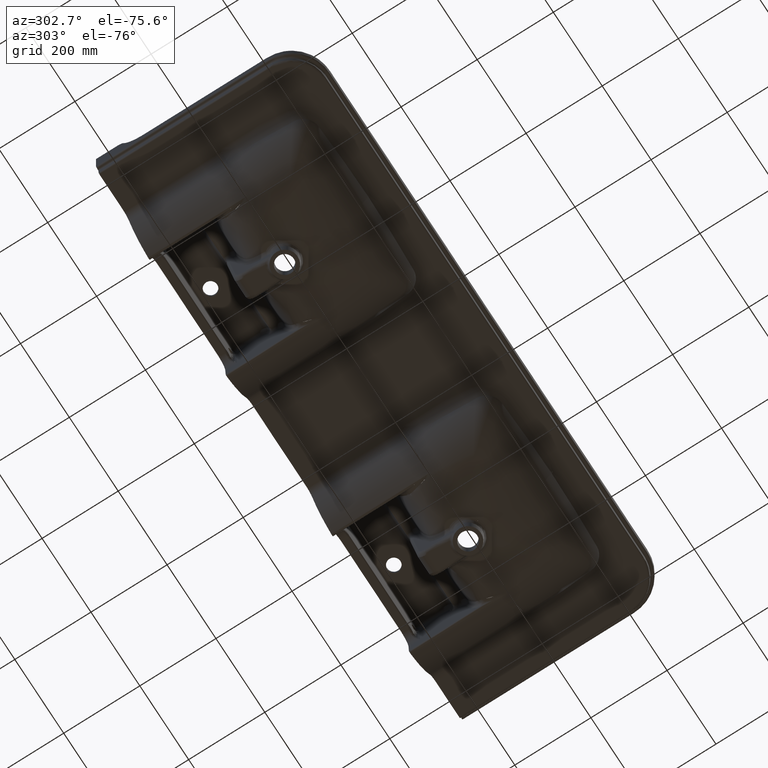
[diagram: clean part render]
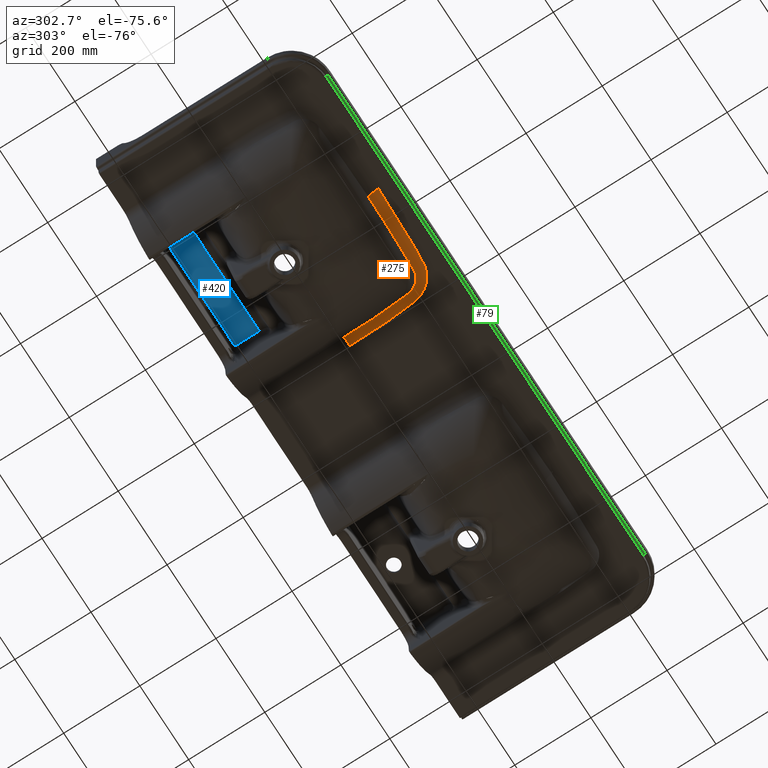
[diagram: same view with three faces highlighted in distinct colors, each labeled with its STEP entity id]
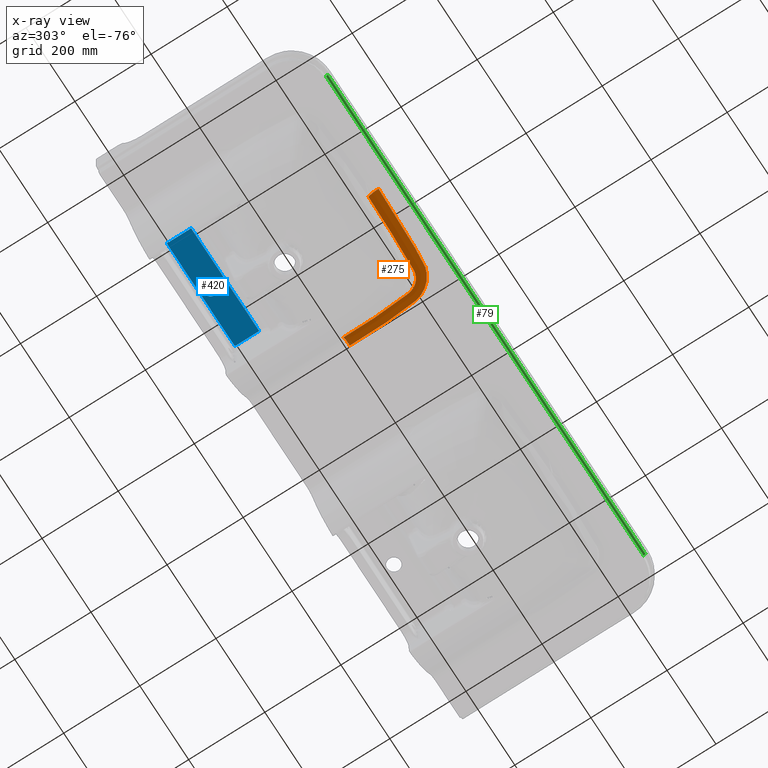
[diagram: x-ray of the same camera — body ghosted, the three highlighted faces saturated]
A machine part, auxiliary view with three faces highlighted in distinct colors.
The next image is the same camera in x-ray (body ghosted, the three faces saturated) — at least one of them is partly hidden behind the body in this view.
Their STEP definitions:

[orange] entity #275 — the highlighted face is a freeform B-spline surface patch.
#275=ADVANCED_FACE($,(#920),#8227,.T.);
#920=FACE_OUTER_BOUND($,#1569,.T.);
#1569=EDGE_LOOP($,(#3029,#3030,#3031,#3032,#3033,#3034,#3035));
#3029=ORIENTED_EDGE($,*,*,#5884,.F.);
#3030=ORIENTED_EDGE($,*,*,#5885,.F.);
#3031=ORIENTED_EDGE($,*,*,#5886,.T.);
#3032=ORIENTED_EDGE($,*,*,#5887,.T.);
#3033=ORIENTED_EDGE($,*,*,#5881,.F.);
#3034=ORIENTED_EDGE($,*,*,#5882,.F.);
#3035=ORIENTED_EDGE($,*,*,#5883,.F.);
#5881=EDGE_CURVE($,#7319,#7318,#9435,.T.);
#5882=EDGE_CURVE($,#7320,#7319,#8918,.T.);
#5883=EDGE_CURVE($,#7321,#7320,#9436,.T.);
#5884=EDGE_CURVE($,#7322,#7321,#9437,.T.);
#5885=EDGE_CURVE($,#7323,#7322,#9438,.T.);
#5886=EDGE_CURVE($,#7323,#7324,#9439,.T.);
#5887=EDGE_CURVE($,#7324,#7318,#9440,.T.);
#7318=VERTEX_POINT($,#248286);
#7319=VERTEX_POINT($,#248287);
#7320=VERTEX_POINT($,#248288);
#7321=VERTEX_POINT($,#248289);
#7322=VERTEX_POINT($,#248290);
#7323=VERTEX_POINT($,#248291);
#7324=VERTEX_POINT($,#248292);
#8227=(
BOUNDED_SURFACE()
B_SPLINE_SURFACE(2,3,((#137853,#137854,#137855,#137856,#137857,#137858,#137859,
#137860,#137861,#137862,#137863,#137864,#137865,#137866,#137867,#137868,
#137869,#137870,#137871,#137872,#137873,#137874,#137875,#137876,#137877,
#137878,#137879,#137880,#137881,#137882,#137883,#137884,#137885,#137886,
#137887,#137888,#137889,#137890,#137891,#137892,#137893,#137894,#137895,
#137896,#137897,#137898,#137899,#137900,#137901,#137902,#137903,#137904,
#137905,#137906,#137907,#137908,#137909,#137910,#137911,#137912,#137913,
#137914,#137915,#137916,#137917,#137918,#137919,#137920,#137921,#137922,
#137923,#137924,#137925,#137926,#137927,#137928,#137929,#137930,#137931,
#137932,#137933,#137934,#137935,#137936,#137937,#137938,#137939,#137940,
#137941,#137942,#137943,#137944,#137945,#137946,#137947,#137948,#137949,
#137950,#137951,#137952,#137953,#137954,#137955,#137956,#137957,#137958,
#137959,#137960,#137961,#137962,#137963,#137964,#137965,#137966,#137967,
#137968,#137969,#137970,#137971,#137972,#137973,#137974,#137975,#137976,
#137977,#137978,#137979,#137980,#137981,#137982,#137983,#137984,#137985,
#137986,#137987,#137988,#137989,#137990,#137991,#137992,#137993,#137994,
#137995,#137996,#137997,#137998,#137999,#138000,#138001,#138002,#138003,
#138004,#138005,#138006,#138007,#138008,#138009,#138010,#138011,#138012,
#138013,#138014,#138015,#138016,#138017,#138018,#138019,#138020,#138021,
#138022,#138023,#138024),(#138025,#138026,#138027,#138028,#138029,#138030,
#138031,#138032,#138033,#138034,#138035,#138036,#138037,#138038,#138039,
#138040,#138041,#138042,#138043,#138044,#138045,#138046,#138047,#138048,
#138049,#138050,#138051,#138052,#138053,#138054,#138055,#138056,#138057,
#138058,#138059,#138060,#138061,#138062,#138063,#138064,#138065,#138066,
#138067,#138068,#138069,#138070,#138071,#138072,#138073,#138074,#138075,
#138076,#138077,#138078,#138079,#138080,#138081,#138082,#138083,#138084,
#138085,#138086,#138087,#138088,#138089,#138090,#138091,#138092,#138093,
#138094,#138095,#138096,#138097,#138098,#138099,#138100,#138101,#138102,
#138103,#138104,#138105,#138106,#138107,#138108,#138109,#138110,#138111,
#138112,#138113,#138114,#138115,#138116,#138117,#138118,#138119,#138120,
#138121,#138122,#138123,#138124,#138125,#138126,#138127,#138128,#138129,
#138130,#138131,#138132,#138133,#138134,#138135,#138136,#138137,#138138,
#138139,#138140,#138141,#138142,#138143,#138144,#138145,#138146,#138147,
#138148,#138149,#138150,#138151,#138152,#138153,#138154,#138155,#138156,
#138157,#138158,#138159,#138160,#138161,#138162,#138163,#138164,#138165,
#138166,#138167,#138168,#138169,#138170,#138171,#138172,#138173,#138174,
#138175,#138176,#138177,#138178,#138179,#138180,#138181,#138182,#138183,
#138184,#138185,#138186,#138187,#138188,#138189,#138190,#138191,#138192,
#138193,#138194,#138195,#138196),(#138197,#138198,#138199,#138200,#138201,
#138202,#138203,#138204,#138205,#138206,#138207,#138208,#138209,#138210,
#138211,#138212,#138213,#138214,#138215,#138216,#138217,#138218,#138219,
#138220,#138221,#138222,#138223,#138224,#138225,#138226,#138227,#138228,
#138229,#138230,#138231,#138232,#138233,#138234,#138235,#138236,#138237,
#138238,#138239,#138240,#138241,#138242,#138243,#138244,#138245,#138246,
#138247,#138248,#138249,#138250,#138251,#138252,#138253,#138254,#138255,
#138256,#138257,#138258,#138259,#138260,#138261,#138262,#138263,#138264,
#138265,#138266,#138267,#138268,#138269,#138270,#138271,#138272,#138273,
#138274,#138275,#138276,#138277,#138278,#138279,#138280,#138281,#138282,
#138283,#138284,#138285,#138286,#138287,#138288,#138289,#138290,#138291,
#138292,#138293,#138294,#138295,#138296,#138297,#138298,#138299,#138300,
#138301,#138302,#138303,#138304,#138305,#138306,#138307,#138308,#138309,
#138310,#138311,#138312,#138313,#138314,#138315,#138316,#138317,#138318,
#138319,#138320,#138321,#138322,#138323,#138324,#138325,#138326,#138327,
#138328,#138329,#138330,#138331,#138332,#138333,#138334,#138335,#138336,
#138337,#138338,#138339,#138340,#138341,#138342,#138343,#138344,#138345,
#138346,#138347,#138348,#138349,#138350,#138351,#138352,#138353,#138354,
#138355,#138356,#138357,#138358,#138359,#138360,#138361,#138362,#138363,
#138364,#138365,#138366,#138367,#138368)),.UNSPECIFIED.,.F.,.F.,.F.)
B_SPLINE_SURFACE_WITH_KNOTS((3,3),(4,2,2,2,2,2,2,2,2,2,2,2,2,2,2,2,2,2,2,
2,2,2,2,2,2,2,2,2,2,2,2,2,2,2,2,2,2,2,2,2,2,2,2,2,2,2,2,2,2,2,2,2,2,2,2,
2,2,2,2,2,2,2,2,2,2,2,2,2,2,2,2,2,2,2,2,2,2,2,2,2,2,2,2,2,2,4),(0.,1.),(0.113112291,
0.127729659089774,0.142347027523934,0.171581764392253,0.200816501260573,
0.215433869694733,0.230051238128893,0.259285974997212,0.273903343431372,
0.277557685539912,0.281212027648452,0.288520711865532,0.303138080299691,
0.303594873063259,0.303823269445043,0.303937467635935,0.303951742409796,
0.303966017183658,0.303969585877123,0.303973154570588,0.303980291957519,
0.30399456673138,0.304051665826826,0.304965251353961,0.306792422408231,0.310446764516771,
0.314101106625311,0.315928277679581,0.317755448733851,0.321409790842391,
0.323236961896661,0.324150547423796,0.325064132950931,0.328718475059471,
0.330545646113741,0.332372817168011,0.339681501385091,0.341508672439361,
0.343335843493631,0.346990185602171,0.348817356656441,0.349730942183576,
0.350644527710711,0.354298869819251,0.356126040873521,0.357953211927791,
0.361607554036331,0.36526189614487,0.36708906719914,0.36891623825341,0.37257058036195,
0.37439775141622,0.37622492247049,0.37805209352476,0.37987926457903,0.3817064356333,
0.38353360668757,0.39084229090465,0.39449663301319,0.39815097512173,0.40545965933881,
0.406373244865945,0.406830037629512,0.407058434011296,0.407172632202188,
0.407229731297634,0.407258280845357,0.407265418232288,0.407268986925753,
0.407272555619218,0.40728683039308,0.40911400144735,0.41276834355589,0.42007702777297,
0.434694396207129,0.463929133075449,0.493163869943769,0.507781238377928,
0.515089922595008,0.522398606812088,0.537015975246248,0.551633343680408,
0.566250712114567,0.573559396331647,0.577213738440187,0.578078284599652),
.UNSPECIFIED.)
GEOMETRIC_REPRESENTATION_ITEM()
RATIONAL_B_SPLINE_SURFACE(((1.,1.,1.,1.,1.,1.,1.,1.,1.,1.,1.,1.,1.,1.,1.,
1.,1.,1.,1.,1.,1.,1.,1.,1.,1.,1.,1.,1.,1.,1.,1.,1.,1.,1.,1.,1.,1.,1.,1.,
1.,1.,1.,1.,1.,1.,1.,1.,1.,1.,1.,1.,1.,1.,1.,1.,1.,1.,1.,1.,1.,1.,1.,1.,
1.,1.,1.,1.,1.,1.,1.,1.,1.,1.,1.,1.,1.,1.,1.,1.,1.,1.,1.,1.,1.,1.,1.,1.,
1.,1.,1.,1.,1.,1.,1.,1.,1.,1.,1.,1.,1.,1.,1.,1.,1.,1.,1.,1.,1.,1.,1.,1.,
1.,1.,1.,1.,1.,1.,1.,1.,1.,1.,1.,1.,1.,1.,1.,1.,1.,1.,1.,1.,1.,1.,1.,1.,
1.,1.,1.,1.,1.,1.,1.,1.,1.,1.,1.,1.,1.,1.,1.,1.,1.,1.,1.,1.,1.,1.,1.,1.,
1.,1.,1.,1.,1.,1.,1.,1.,1.,1.,1.,1.,1.),(0.857438929811203,0.857438929812373,
0.857463763529032,0.85756577833455,0.857642969061803,0.857956973654814,0.858276714983811,
0.859152749749832,0.859708787745644,0.860725822684233,0.861095351585493,
0.861895058478538,0.862325247804178,0.863705814917389,0.864746566890884,
0.866480209283033,0.867086645969073,0.867879063760453,0.868041446814136,
0.868357360044424,0.868517179080222,0.869002163770204,0.869332858059088,
0.870346542241388,0.871051144834735,0.871805903223466,0.871828801319567,
0.871863188334703,0.87187465731839,0.871891870752202,0.871897610223262,0.871904068994509,
0.871904786661689,0.871906222047865,0.871906505721978,0.871907945459265,
0.871909236637133,0.871911385709347,0.871912460199073,0.871915683529068,
0.871917832230184,0.871924277777006,0.871928574066147,0.871950051802689,
0.871967222122666,0.872258916035657,0.87253041700964,0.873335993148249,0.873861144731058,
0.875402197802647,0.876383745916408,0.878260914085848,0.879156531062547,
0.880438658340336,0.880855806233801,0.881670036621338,0.882067340359129,
0.883227228520192,0.883958303743553,0.88499459224514,0.88532995548012,0.885818158268095,
0.885978418066932,0.886294022127716,0.886449482016551,0.887213029176084,
0.88777907257622,0.888564814089526,0.888816330699907,0.889297533841163,0.889527292062117,
0.890623579114697,0.891333751293355,0.892028430878358,0.892157643746476,
0.892396730933284,0.892506702080743,0.892806723132706,0.892967018815005,
0.893148686680573,0.893199432443362,0.893260804133901,0.893278790377181,
0.893309762986543,0.893322764244134,0.893375447460495,0.893378234809171,
0.893324424349863,0.893296808592213,0.893222200702912,0.893175230342714,
0.893005596720148,0.892854266991417,0.892475246144095,0.892247555700195,
0.89184748600975,0.891704359627584,0.891398183812081,0.891235047139323,0.890715697760276,
0.890329820335173,0.889689316978788,0.88946543223278,0.888998168114758,0.888754622361124,
0.888247349825368,0.887983472984811,0.887437248079825,0.88715468044922,0.886570397225501,
0.886268523017541,0.885646126089522,0.885325696766987,0.883677037893099,
0.882210226150678,0.879769910124632,0.878915966971912,0.877123523028473,
0.8761869588445,0.873249611578892,0.871122116847899,0.868507004249026,0.868213337799483,
0.867768082981174,0.867618851435667,0.867394018463916,0.867318901738856,
0.867205966895504,0.867168278655164,0.867111681210033,0.867092804547342,
0.867064473264062,0.867055026787978,0.867043215297338,0.867040594314984,
0.867037438130095,0.867037279148967,0.867036512357384,0.867036128964524,
0.867034212014862,0.867032678502057,0.866834861398976,0.866639346285377,
0.866055151632084,0.865668822787918,0.864519600264601,0.863766470372235,
0.861549032466876,0.860126668207991,0.856050732884523,0.853588021677519,
0.849300979114552,0.847476544737901,0.845327227143134,0.844708711931276,
0.843943212841606,0.84371510769726,0.843315754851524,0.84314441043619,0.842719840926094,
0.842556323958187,0.842492138159948,0.842591383627006,0.843079064015501,
0.843467496533482,0.844288545023973,0.844601978439052,0.845134594693668,
0.845322545494266,0.845568137141812,0.845615718566746,0.845663897577864),
(1.,1.,1.,1.,1.,1.,1.,1.,1.,1.,1.,1.,1.,1.,1.,1.,1.,1.,1.,1.,1.,1.,1.,1.,
1.,1.,1.,1.,1.,1.,1.,1.,1.,1.,1.,1.,1.,1.,1.,1.,1.,1.,1.,1.,1.,1.,1.,1.,
1.,1.,1.,1.,1.,1.,1.,1.,1.,1.,1.,1.,1.,1.,1.,1.,1.,1.,1.,1.,1.,1.,1.,1.,
1.,1.,1.,1.,1.,1.,1.,1.,1.,1.,1.,1.,1.,1.,1.,1.,1.,1.,1.,1.,1.,1.,1.,1.,
1.,1.,1.,1.,1.,1.,1.,1.,1.,1.,1.,1.,1.,1.,1.,1.,1.,1.,1.,1.,1.,1.,1.,1.,
1.,1.,1.,1.,1.,1.,1.,1.,1.,1.,1.,1.,1.,1.,1.,1.,1.,1.,1.,1.,1.,1.,1.,1.,
1.,1.,1.,1.,1.,1.,1.,1.,1.,1.,1.,1.,1.,1.,1.,1.,1.,1.,1.,1.,1.,1.,1.,1.,
1.,1.,1.,1.)))
REPRESENTATION_ITEM($)
SURFACE()
);
#8918=(
BOUNDED_CURVE()
B_SPLINE_CURVE(2,(#18452,#18453,#18454),.UNSPECIFIED.,.F.,.F.)
B_SPLINE_CURVE_WITH_KNOTS((3,3),(1.,2.08104888053683),.UNSPECIFIED.)
CURVE()
GEOMETRIC_REPRESENTATION_ITEM()
RATIONAL_B_SPLINE_CURVE((1.,0.857438929806326,1.))
REPRESENTATION_ITEM($)
);
#9435=B_SPLINE_CURVE_WITH_KNOTS($,3,(#18410,#18411,#18412,#18413,#18414,
#18415,#18416,#18417,#18418,#18419,#18420,#18421,#18422,#18423,#18424,#18425,
#18426,#18427,#18428,#18429,#18430,#18431,#18432,#18433,#18434,#18435,#18436,
#18437,#18438,#18439,#18440,#18441,#18442,#18443,#18444,#18445,#18446,#18447,
#18448,#18449,#18450,#18451),.UNSPECIFIED.,.F.,.F.,(4,2,2,2,2,2,2,2,2,2,
2,2,2,2,2,2,2,2,2,2,4),(2.08104888053683,2.33104888053661,2.45604888053664,
2.48729888053665,2.50292388053666,2.51854888053666,2.53417388053666,2.54979888053667,
2.58104888053668,2.59667388053668,2.61229888053669,2.6435488805367,2.6591738805367,
2.6747988805367,2.70604888053671,2.72167388053672,2.73729888053672,2.76854888053673,
2.83104888053675,2.95604888053679,3.08104888053683),.UNSPECIFIED.);
#9436=B_SPLINE_CURVE_WITH_KNOTS($,3,(#18455,#18456,#18457,#18458,#18459,
#18460),.UNSPECIFIED.,.F.,.F.,(4,2,4),(0.,0.500000000000359,1.),.UNSPECIFIED.);
#9437=B_SPLINE_CURVE_WITH_KNOTS($,3,(#18461,#18462,#18463,#18464,#18465,
#18466,#18467,#18468,#18469,#18470,#18471,#18472,#18473,#18474,#18475,#18476,
#18477,#18478),.UNSPECIFIED.,.F.,.F.,(4,2,2,2,2,2,2,2,4),(5.08105823697527,
5.20605823697527,5.33105823697527,5.45605823697527,5.58105823697527,5.70605823697527,
5.83105823697527,5.95605823697527,6.08105823697527),.UNSPECIFIED.);
#9438=B_SPLINE_CURVE_WITH_KNOTS($,3,(#18479,#18480,#18481,#18482,#18483,
#18484),.UNSPECIFIED.,.F.,.F.,(4,2,4),(4.08105823697527,4.58105823697527,
5.08105823697527),.UNSPECIFIED.);
#9439=B_SPLINE_CURVE_WITH_KNOTS($,3,(#18485,#18486,#18487,#18488),.UNSPECIFIED.,
.F.,.F.,(4,4),(0.0323038140107749,0.0323131704492199),.UNSPECIFIED.);
#9440=B_SPLINE_CURVE_WITH_KNOTS($,3,(#18489,#18490,#18491,#18492,#18493,
#18494,#18495,#18496,#18497,#18498,#18499,#18500,#18501,#18502),.UNSPECIFIED.,
.F.,.F.,(4,2,2,2,2,2,4),(0.0322938794926911,0.28229387949269,0.407293879492689,
0.532293879492689,0.782293879492687,0.907293879492689,1.03229387949269),
.UNSPECIFIED.);
#18410=CARTESIAN_POINT($,(-30.9148483423476,-232.142942241147,154.999999999983));
#18411=CARTESIAN_POINT($,(7.82056681657857,-232.142942240883,154.999999999963));
#18412=CARTESIAN_POINT($,(46.5444309125041,-231.1295097829,154.999999999963));
#18413=CARTESIAN_POINT($,(104.587050962414,-228.533767860927,154.999999999963));
#18414=CARTESIAN_POINT($,(123.928145600399,-227.495306177936,154.999999999963));
#18415=CARTESIAN_POINT($,(148.089944627381,-226.042261812946,154.999999999963));
#18416=CARTESIAN_POINT($,(152.921356752377,-225.743885986949,154.999999999963));
#18417=CARTESIAN_POINT($,(160.167178161371,-225.285694179952,154.999999999963));
#18418=CARTESIAN_POINT($,(162.580985284369,-225.120943041953,154.999999999963));
#18419=CARTESIAN_POINT($,(167.372976313365,-224.499481872955,154.999999999963));
#18420=CARTESIAN_POINT($,(169.755476904363,-224.078150305956,154.999999999963));
#18421=CARTESIAN_POINT($,(174.492360425359,-223.005041914959,154.999999999963));
#18422=CARTESIAN_POINT($,(176.846735224357,-222.35319845696,154.999999999963));
#18423=CARTESIAN_POINT($,(181.525649631353,-220.804989857962,154.999999999963));
#18424=CARTESIAN_POINT($,(183.83062609935,-219.913701495964,154.999999999963));
#18425=CARTESIAN_POINT($,(190.536697184343,-216.929429320968,154.999999999963));
#18426=CARTESIAN_POINT($,(194.775167618338,-214.51659843697,154.999999999963));
#18427=CARTESIAN_POINT($,(200.772686413331,-210.240830764974,154.999999999963));
#18428=CARTESIAN_POINT($,(202.719019265329,-208.697697064976,154.999999999963));
#18429=CARTESIAN_POINT($,(206.404880103324,-205.454529347979,154.999999999963));
#18430=CARTESIAN_POINT($,(208.153729827321,-203.74868988598,154.999999999963));
#18431=CARTESIAN_POINT($,(213.124146503314,-198.383876240984,154.999999999963));
#18432=CARTESIAN_POINT($,(216.079773136309,-194.467852130987,154.999999999963));
#18433=CARTESIAN_POINT($,(219.916538804302,-188.120041145991,154.999999999963));
#18434=CARTESIAN_POINT($,(221.0864521683,-185.938885838992,154.999999999963));
#18435=CARTESIAN_POINT($,(223.179996394295,-181.518428710995,154.999999999963));
#18436=CARTESIAN_POINT($,(224.109077174293,-179.270933579996,154.999999999963));
#18437=CARTESIAN_POINT($,(226.557543957287,-172.421176043,154.999999999963));
#18438=CARTESIAN_POINT($,(227.739715304282,-167.712135746002,154.999999999963));
#18439=CARTESIAN_POINT($,(228.836827395277,-160.434476274005,154.999999999963));
#18440=CARTESIAN_POINT($,(229.058763117275,-157.966093653006,154.999999999963));
#18441=CARTESIAN_POINT($,(229.542175572271,-153.049713996008,154.999999999963));
#18442=CARTESIAN_POINT($,(229.778651958269,-150.591188037009,154.999999999963));
#18443=CARTESIAN_POINT($,(230.472174725264,-143.214587835013,154.999999999963));
#18444=CARTESIAN_POINT($,(230.91332202326,-138.295491732015,154.999999999963));
#18445=CARTESIAN_POINT($,(232.171188641249,-123.533988802021,154.999999999963));
#18446=CARTESIAN_POINT($,(232.922522012242,-113.687379521025,154.999999999963));
#18447=CARTESIAN_POINT($,(234.89378640822,-84.1293798260372,154.999999999963));
#18448=CARTESIAN_POINT($,(235.836397059206,-64.4001656120454,154.999999999963));
#18449=CARTESIAN_POINT($,(236.771081761179,-24.8806447590609,154.999999999963));
#18450=CARTESIAN_POINT($,(236.769351990165,-5.1207384620684,154.999999999963));
#18451=CARTESIAN_POINT($,(236.070019048152,14.6347990589243,154.999999999963));
#18452=CARTESIAN_POINT($,(-30.9148483423476,-205.669391577065,139.11209110105));
#18453=CARTESIAN_POINT($,(-30.9148483422115,-214.138660419559,155.000000000107));
#18454=CARTESIAN_POINT($,(-30.9148483423476,-232.142942241147,154.999999999983));
#18455=CARTESIAN_POINT($,(158.210323811652,-199.740998986076,140.613389749963));
#18456=CARTESIAN_POINT($,(126.71768237163,-201.440223335062,140.113092281919));
#18457=CARTESIAN_POINT($,(95.2104561236071,-202.932308580047,139.726337412874));
#18458=CARTESIAN_POINT($,(32.165726861607,-205.053469907017,139.224507718784));
#18459=CARTESIAN_POINT($,(0.628609078629701,-205.669391577002,139.112091100739));
#18460=CARTESIAN_POINT($,(-30.9148483423476,-205.669391577065,139.11209110105));
#18461=CARTESIAN_POINT($,(203.155977590652,-156.485931644076,140.105276177963));
#18462=CARTESIAN_POINT($,(203.122550150652,-159.390193346076,140.546008639963));
#18463=CARTESIAN_POINT($,(202.822758055652,-162.313221686076,140.934594982963));
#18464=CARTESIAN_POINT($,(201.689515138652,-167.987617184076,141.604990208963));
#18465=CARTESIAN_POINT($,(200.856811807652,-170.751830020076,141.883937320963));
#18466=CARTESIAN_POINT($,(198.632148971652,-176.124255417076,142.348675331963));
#18467=CARTESIAN_POINT($,(197.217373296652,-178.748750433076,142.530087513963));
#18468=CARTESIAN_POINT($,(193.944722390652,-183.550122045076,142.783496514963));
#18469=CARTESIAN_POINT($,(192.080681192652,-185.755508303076,142.856586505963));
#18470=CARTESIAN_POINT($,(187.896451115652,-189.774873530076,142.901525189963));
#18471=CARTESIAN_POINT($,(185.546490210652,-191.600152798076,142.871403145963));
#18472=CARTESIAN_POINT($,(180.622552600652,-194.663074655076,142.705477051963));
#18473=CARTESIAN_POINT($,(178.028636609652,-195.929823005076,142.573089833963));
#18474=CARTESIAN_POINT($,(172.583047549652,-197.944635040076,142.195724994963));
#18475=CARTESIAN_POINT($,(169.722721295652,-198.689089157076,141.952561891963));
#18476=CARTESIAN_POINT($,(164.008200144652,-199.609382450076,141.361846647963));
#18477=CARTESIAN_POINT($,(161.119427153652,-199.802692180076,141.017630054963));
#18478=CARTESIAN_POINT($,(158.210323811652,-199.740998986076,140.613389749963));
#18479=CARTESIAN_POINT($,(208.995143848652,13.990686488924,137.908845659963));
#18480=CARTESIAN_POINT($,(209.780160712652,-14.4556313540761,137.419826950963));
#18481=CARTESIAN_POINT($,(209.385699820652,-42.9243655190758,137.529063651963));
#18482=CARTESIAN_POINT($,(207.228376536652,-99.7648571020759,138.391786899963));
#18483=CARTESIAN_POINT($,(205.446067497652,-128.144138402076,139.157346226963));
#18484=CARTESIAN_POINT($,(203.155977590652,-156.485931644076,140.105276177963));
#18485=CARTESIAN_POINT($,(208.995143848652,13.990686488924,137.908845659963));
#18486=CARTESIAN_POINT($,(208.996486267617,13.9906962279306,137.911660764131));
#18487=CARTESIAN_POINT($,(208.997828791582,13.990717202937,137.914475801298));
#18488=CARTESIAN_POINT($,(208.999171368548,13.9907494139438,137.917290662465));
#18489=CARTESIAN_POINT($,(208.999171368548,13.9907494139438,137.917290662465));
#18490=CARTESIAN_POINT($,(210.221334134593,14.0200719419422,140.479690514427));
#18491=CARTESIAN_POINT($,(211.771026950641,14.0572209699408,142.811226966387));
#18492=CARTESIAN_POINT($,(214.575208050718,14.1243041429384,145.970452153324));
#18493=CARTESIAN_POINT($,(215.595458036744,14.1486910929375,146.967849656302));
#18494=CARTESIAN_POINT($,(217.736657500797,14.1998173329357,148.784815504258));
#18495=CARTESIAN_POINT($,(218.864421806823,14.2267198529348,149.613134818236));
#18496=CARTESIAN_POINT($,(222.418203732903,14.3113964049321,151.859011721171));
#18497=CARTESIAN_POINT($,(225.034095654956,14.3735951519307,153.035501820126));
#18498=CARTESIAN_POINT($,(229.065272097032,14.4691920369278,154.203954956063));
#18499=CARTESIAN_POINT($,(230.436121027057,14.5016613679272,154.499883811042));
#18500=CARTESIAN_POINT($,(233.233703147106,14.5678369259253,154.898983378002));
#18501=CARTESIAN_POINT($,(234.67100267813,14.601789234925,154.999999999982));
#18502=CARTESIAN_POINT($,(236.070019048152,14.6347990589243,154.999999999963));
#137853=CARTESIAN_POINT($,(-30.914847997901,-232.142942241076,154.999999999963));
#137854=CARTESIAN_POINT($,(-26.0415342297028,-232.142942240342,154.999999999963));
#137855=CARTESIAN_POINT($,(-21.1679281305184,-232.127370909348,154.999999999963));
#137856=CARTESIAN_POINT($,(-11.4201409603476,-232.065586994076,154.999999999963));
#137857=CARTESIAN_POINT($,(-6.54585156834762,-232.019372505076,154.999999999963));
#137858=CARTESIAN_POINT($,(8.07519417365239,-231.835875521076,154.999999999963));
#137859=CARTESIAN_POINT($,(17.8209729556524,-231.653611096076,154.999999999963));
#137860=CARTESIAN_POINT($,(37.3095802756524,-231.177528777076,154.999999999963));
#137861=CARTESIAN_POINT($,(47.0524121646524,-230.883837617076,154.999999999963));
#137862=CARTESIAN_POINT($,(61.6646706076524,-230.368078844076,154.999999999963));
#137863=CARTESIAN_POINT($,(66.5350919296524,-230.183624998076,154.999999999963));
#137864=CARTESIAN_POINT($,(76.2753120416524,-229.791178352076,154.999999999963));
#137865=CARTESIAN_POINT($,(81.1451529566524,-229.583192999076,154.999999999963));
#137866=CARTESIAN_POINT($,(95.7527601896524,-228.926424935076,154.999999999963));
#137867=CARTESIAN_POINT($,(105.488956071652,-228.444840315076,154.999999999963));
#137868=CARTESIAN_POINT($,(120.090414521652,-227.666320160076,154.999999999963));
#137869=CARTESIAN_POINT($,(124.957095005652,-227.397460759076,154.999999999963));
#137870=CARTESIAN_POINT($,(131.039905096652,-227.050683813076,154.999999999963));
#137871=CARTESIAN_POINT($,(132.256440104652,-226.980793596076,154.999999999963));
#137872=CARTESIAN_POINT($,(134.689457120652,-226.839963699076,154.999999999963));
#137873=CARTESIAN_POINT($,(135.905902172652,-226.769025062076,154.999999999963));
#137874=CARTESIAN_POINT($,(139.555049342652,-226.554673886076,154.999999999963));
#137875=CARTESIAN_POINT($,(141.987564379652,-226.409726273076,154.999999999963));
#137876=CARTESIAN_POINT($,(149.284394081652,-225.969020112076,154.999999999963));
#137877=CARTESIAN_POINT($,(154.147993879652,-225.667402701076,154.999999999963));
#137878=CARTESIAN_POINT($,(159.162684809652,-225.349013398076,154.999999999963));
#137879=CARTESIAN_POINT($,(159.314644291652,-225.339358274076,154.999999999963));
#137880=CARTESIAN_POINT($,(159.542582243652,-225.324865175076,154.999999999963));
#137881=CARTESIAN_POINT($,(159.618561349652,-225.320032407076,154.999999999963));
#137882=CARTESIAN_POINT($,(159.732529690652,-225.312780654076,154.999999999963));
#137883=CARTESIAN_POINT($,(159.770519084652,-225.310362970076,154.999999999963));
#137884=CARTESIAN_POINT($,(159.813257093652,-225.307642588076,154.999999999963));
#137885=CARTESIAN_POINT($,(159.818005760652,-225.307340317076,154.999999999963));
#137886=CARTESIAN_POINT($,(159.827503092652,-225.306735760076,154.999999999963));
#137887=CARTESIAN_POINT($,(159.832251757652,-225.306433476076,154.999999999963));
#137888=CARTESIAN_POINT($,(159.838187587652,-225.306055611076,154.999999999963));
#137889=CARTESIAN_POINT($,(159.839374752652,-225.305980030076,154.999999999963));
#137890=CARTESIAN_POINT($,(159.841749074652,-225.305828800076,154.999999999963));
#137891=CARTESIAN_POINT($,(159.842936232652,-225.305753159076,154.999999999963));
#137892=CARTESIAN_POINT($,(159.846497696652,-225.305526155076,154.999999999963));
#137893=CARTESIAN_POINT($,(159.848871992652,-225.305374713076,154.999999999963));
#137894=CARTESIAN_POINT($,(159.855994841652,-225.304920068076,154.999999999963));
#137895=CARTESIAN_POINT($,(159.860743355652,-225.304616547076,154.999999999963));
#137896=CARTESIAN_POINT($,(159.884485668652,-225.303096818076,154.999999999963));
#137897=CARTESIAN_POINT($,(159.903478689652,-225.301874241076,154.999999999963));
#137898=CARTESIAN_POINT($,(160.226345959652,-225.280974948076,154.999999999963));
#137899=CARTESIAN_POINT($,(160.530008839652,-225.259565907076,154.999999999963));
#137900=CARTESIAN_POINT($,(161.440360490652,-225.190118179076,154.999999999963));
#137901=CARTESIAN_POINT($,(162.046412377652,-225.136859756076,154.999999999963));
#137902=CARTESIAN_POINT($,(163.862013415652,-224.956147446076,154.999999999963));
#137903=CARTESIAN_POINT($,(165.069009687652,-224.807770790076,154.999999999963));
#137904=CARTESIAN_POINT($,(167.476114944652,-224.454571046076,154.999999999963));
#137905=CARTESIAN_POINT($,(168.676224040652,-224.249748838076,154.999999999963));
#137906=CARTESIAN_POINT($,(170.471120740652,-223.899348998076,154.999999999963));
#137907=CARTESIAN_POINT($,(171.068541361652,-223.775350900076,154.999999999963));
#137908=CARTESIAN_POINT($,(172.261603437652,-223.512773100076,154.999999999963));
#137909=CARTESIAN_POINT($,(172.857244531652,-223.374190448076,154.999999999963));
#137910=CARTESIAN_POINT($,(174.641462106652,-222.936267201076,154.999999999963));
#137911=CARTESIAN_POINT($,(175.827337453652,-222.614788772076,154.999999999963));
#137912=CARTESIAN_POINT($,(177.600591610652,-222.087012132076,154.999999999963));
#137913=CARTESIAN_POINT($,(178.190749278652,-221.903488694076,154.999999999963));
#137914=CARTESIAN_POINT($,(179.074570377652,-221.616603265076,154.999999999963));
#137915=CARTESIAN_POINT($,(179.368941469652,-221.519041080076,154.999999999963));
#137916=CARTESIAN_POINT($,(179.957207135652,-221.320011275076,154.999999999963));
#137917=CARTESIAN_POINT($,(180.251325230652,-221.218464251076,154.999999999963));
#137918=CARTESIAN_POINT($,(181.717757419652,-220.701910769076,154.999999999963));
#137919=CARTESIAN_POINT($,(182.875812376652,-220.261161632076,154.999999999963));
#137920=CARTESIAN_POINT($,(184.590486742652,-219.559194183076,154.999999999963));
#137921=CARTESIAN_POINT($,(185.158306453652,-219.318390944076,154.999999999963));
#137922=CARTESIAN_POINT($,(186.286493338652,-218.823200539076,154.999999999963));
#137923=CARTESIAN_POINT($,(186.846863173652,-218.568818227076,154.999999999963));
#137924=CARTESIAN_POINT($,(189.630171648652,-217.263112088076,154.999999999963));
#137925=CARTESIAN_POINT($,(191.797665905652,-216.110728429076,154.999999999963));
#137926=CARTESIAN_POINT($,(194.432548933652,-214.534483613076,154.999999999963));
#137927=CARTESIAN_POINT($,(194.955790162652,-214.212426088076,154.999999999963));
#137928=CARTESIAN_POINT($,(195.994743184652,-213.554586950076,154.999999999963));
#137929=CARTESIAN_POINT($,(196.510453556652,-213.218802751076,154.999999999963));
#137930=CARTESIAN_POINT($,(198.046185156652,-212.190671970076,154.999999999963));
#137931=CARTESIAN_POINT($,(199.054828699652,-211.477587013076,154.999999999963));
#137932=CARTESIAN_POINT($,(200.544624353652,-210.365727662076,154.999999999963));
#137933=CARTESIAN_POINT($,(201.037358807652,-209.988064697076,154.999999999963));
#137934=CARTESIAN_POINT($,(201.770590398652,-209.410870693076,154.999999999963));
#137935=CARTESIAN_POINT($,(202.013923679652,-209.216762566076,154.999999999963));
#137936=CARTESIAN_POINT($,(202.497226180652,-208.826104018076,154.999999999963));
#137937=CARTESIAN_POINT($,(202.737365328652,-208.629420554076,154.999999999963));
#137938=CARTESIAN_POINT($,(203.930540130652,-207.639267730076,154.999999999963));
#137939=CARTESIAN_POINT($,(204.861032460652,-206.825609301076,154.999999999963));
#137940=CARTESIAN_POINT($,(206.221221163652,-205.573284427076,154.999999999963));
#137941=CARTESIAN_POINT($,(206.668686260652,-205.150531068076,154.999999999963));
#137942=CARTESIAN_POINT($,(207.551811736652,-204.294452432076,154.999999999963));
#137943=CARTESIAN_POINT($,(207.987476754652,-203.861131307076,154.999999999963));
#137944=CARTESIAN_POINT($,(209.276890072652,-202.545422303076,154.999999999963));
#137945=CARTESIAN_POINT($,(210.113071174652,-201.647301817076,154.999999999963));
#137946=CARTESIAN_POINT($,(211.738819070652,-199.809314585076,154.999999999963));
#137947=CARTESIAN_POINT($,(212.528385932652,-198.869447904076,154.999999999963));
#137948=CARTESIAN_POINT($,(213.677606404652,-197.428186759076,154.999999999963));
#137949=CARTESIAN_POINT($,(214.054821276652,-196.942519591076,154.999999999963));
#137950=CARTESIAN_POINT($,(214.797461122652,-195.960626602076,154.999999999963));
#137951=CARTESIAN_POINT($,(215.162884467652,-195.464399327076,154.999999999963));
#137952=CARTESIAN_POINT($,(216.241326746652,-193.959751539076,154.999999999963));
#137953=CARTESIAN_POINT($,(216.936550313652,-192.935394080076,154.999999999963));
#137954=CARTESIAN_POINT($,(217.943257521652,-191.366502701076,154.999999999963));
#137955=CARTESIAN_POINT($,(218.272884648652,-190.837977216076,154.999999999963));
#137956=CARTESIAN_POINT($,(218.917828601652,-189.773638602076,154.999999999963));
#137957=CARTESIAN_POINT($,(219.233424880652,-189.237401828076,154.999999999963));
#137958=CARTESIAN_POINT($,(219.850889974652,-188.156807503076,154.999999999963));
#137959=CARTESIAN_POINT($,(220.152885939652,-187.612181314076,154.999999999963));
#137960=CARTESIAN_POINT($,(220.740932350652,-186.519035013076,154.999999999963));
#137961=CARTESIAN_POINT($,(221.027270635652,-185.970028458076,154.999999999963));
#137962=CARTESIAN_POINT($,(221.584795327652,-184.867217556076,154.999999999963));
#137963=CARTESIAN_POINT($,(221.855979863652,-184.313412618076,154.999999999963));
#137964=CARTESIAN_POINT($,(222.383381681652,-183.201063409076,154.999999999963));
#137965=CARTESIAN_POINT($,(222.639603864652,-182.642520692076,154.999999999963));
#137966=CARTESIAN_POINT($,(223.883838094652,-179.838130222076,154.999999999963));
#137967=CARTESIAN_POINT($,(224.761567445652,-177.557361827076,154.999999999963));
#137968=CARTESIAN_POINT($,(225.907290254652,-174.082103435076,154.999999999963));
#137969=CARTESIAN_POINT($,(226.260649263652,-172.914644154076,154.999999999963));
#137970=CARTESIAN_POINT($,(226.910410550652,-170.561690434076,154.999999999963));
#137971=CARTESIAN_POINT($,(227.206823579652,-169.376199399076,154.999999999963));
#137972=CARTESIAN_POINT($,(228.010813891652,-165.792732560076,154.999999999963));
#137973=CARTESIAN_POINT($,(228.433394093652,-163.367842712076,154.999999999963));
#137974=CARTESIAN_POINT($,(228.778419582652,-160.598558112076,154.999999999963));
#137975=CARTESIAN_POINT($,(228.814939743652,-160.290284792076,154.999999999963));
#137976=CARTESIAN_POINT($,(228.866981853652,-159.827007792076,154.999999999963));
#137977=CARTESIAN_POINT($,(228.883874866652,-159.672416600076,154.999999999963));
#137978=CARTESIAN_POINT($,(228.908504858652,-159.440535598076,154.999999999963));
#137979=CARTESIAN_POINT($,(228.916597589652,-159.363234394076,154.999999999963));
#137980=CARTESIAN_POINT($,(228.928560922652,-159.247271291076,154.999999999963));
#137981=CARTESIAN_POINT($,(228.932519405652,-159.208615040076,154.999999999963));
#137982=CARTESIAN_POINT($,(228.938413205652,-159.150627842076,154.999999999963));
#137983=CARTESIAN_POINT($,(228.940370485652,-159.131298305076,154.999999999963));
#137984=CARTESIAN_POINT($,(228.943295425652,-159.102303294076,154.999999999963));
#137985=CARTESIAN_POINT($,(228.944268575652,-159.092638173076,154.999999999963));
#137986=CARTESIAN_POINT($,(228.945482725652,-159.080556624076,154.999999999963));
#137987=CARTESIAN_POINT($,(228.945725440652,-159.078140307076,154.999999999963));
#137988=CARTESIAN_POINT($,(228.946089344652,-159.074515821076,154.999999999963));
#137989=CARTESIAN_POINT($,(228.946210625652,-159.073307657076,154.999999999963));
#137990=CARTESIAN_POINT($,(228.946453201652,-159.070891331076,154.999999999963));
#137991=CARTESIAN_POINT($,(228.946574488652,-159.069683168076,154.999999999963));
#137992=CARTESIAN_POINT($,(228.947180916652,-159.063642352076,154.999999999963));
#137993=CARTESIAN_POINT($,(228.947666038652,-159.058809698076,154.999999999963));
#137994=CARTESIAN_POINT($,(229.010244186652,-158.435397167076,154.999999999963));
#137995=CARTESIAN_POINT($,(229.072008021652,-157.816796133076,154.999999999963));
#137996=CARTESIAN_POINT($,(229.256308669652,-155.960929345076,154.999999999963));
#137997=CARTESIAN_POINT($,(229.377854644652,-154.723599909076,154.999999999963));
#137998=CARTESIAN_POINT($,(229.738502602652,-151.011355160076,154.999999999963));
#137999=CARTESIAN_POINT($,(229.973615016652,-148.536183432076,154.999999999963));
#138000=CARTESIAN_POINT($,(230.662767201652,-141.109628008076,154.999999999963));
#138001=CARTESIAN_POINT($,(231.100629679652,-136.157204574076,154.999999999963));
#138002=CARTESIAN_POINT($,(232.347437415652,-121.295642239076,154.999999999963));
#138003=CARTESIAN_POINT($,(233.089809361652,-111.382224572076,154.999999999963));
#138004=CARTESIAN_POINT($,(234.382130648652,-91.5430219440759,154.999999999963));
#138005=CARTESIAN_POINT($,(234.932145412652,-81.6172411890761,154.999999999963));
#138006=CARTESIAN_POINT($,(235.596495654652,-66.7182434310757,154.999999999963));
#138007=CARTESIAN_POINT($,(235.791106319652,-61.7501858350761,154.999999999963));
#138008=CARTESIAN_POINT($,(236.039931401652,-54.2953299230758,154.999999999963));
#138009=CARTESIAN_POINT($,(236.115685837652,-51.8099160160759,154.999999999963));
#138010=CARTESIAN_POINT($,(236.252275781652,-46.8381293400757,154.999999999963));
#138011=CARTESIAN_POINT($,(236.313114879652,-44.351587046076,154.999999999963));
#138012=CARTESIAN_POINT($,(236.472326163652,-36.8918249180761,154.999999999963));
#138013=CARTESIAN_POINT($,(236.547425551652,-31.9187758090761,154.999999999963));
#138014=CARTESIAN_POINT($,(236.630121572652,-21.9729508130758,154.999999999963));
#138015=CARTESIAN_POINT($,(236.637724322652,-17.0001749010758,154.999999999963));
#138016=CARTESIAN_POINT($,(236.578667969652,-7.05492365707596,154.999999999963));
#138017=CARTESIAN_POINT($,(236.512021724652,-2.0824482730759,154.999999999963));
#138018=CARTESIAN_POINT($,(236.350164438652,5.37601430692393,154.999999999963));
#138019=CARTESIAN_POINT($,(236.285884414652,7.86212669892393,154.999999999963));
#138020=CARTESIAN_POINT($,(236.173064410652,11.5912289059243,154.999999999963));
#138021=CARTESIAN_POINT($,(236.132723409652,12.8342519079242,154.999999999963));
#138022=CARTESIAN_POINT($,(236.079355725394,14.3713358416745,154.999999999963));
#138023=CARTESIAN_POINT($,(236.068988093665,14.6654004764249,154.999999999963));
#138024=CARTESIAN_POINT($,(236.058462122232,14.9594525853131,154.999999999963));
#138025=CARTESIAN_POINT($,(-30.9148480006101,-214.138660420076,154.999999999963));
#138026=CARTESIAN_POINT($,(-26.0798636205042,-214.138660419441,154.999999997963));
#138027=CARTESIAN_POINT($,(-21.2446285583922,-214.125182560449,154.999999999963));
#138028=CARTESIAN_POINT($,(-11.5721663483476,-214.071966266076,154.999999999963));
#138029=CARTESIAN_POINT($,(-6.73542142134761,-214.032233050076,154.999999999963));
#138030=CARTESIAN_POINT($,(7.77389615965239,-213.875043837076,154.999999999963));
#138031=CARTESIAN_POINT($,(17.4460403876524,-213.719571323076,154.999999999963));
#138032=CARTESIAN_POINT($,(36.8002029326524,-213.316342941076,154.999999999963));
#138033=CARTESIAN_POINT($,(46.4769098116524,-213.068891438076,155.000000000963));
#138034=CARTESIAN_POINT($,(61.0064485626524,-212.637007879076,154.999999999963));
#138035=CARTESIAN_POINT($,(65.8481322316524,-212.483070071076,154.999999999963));
#138036=CARTESIAN_POINT($,(75.5340666566524,-212.156524736076,154.999999999963));
#138037=CARTESIAN_POINT($,(80.3776563226524,-211.983966230076,154.999999999963));
#138038=CARTESIAN_POINT($,(94.9035274396524,-211.440975995076,154.999999998963));
#138039=CARTESIAN_POINT($,(104.592718465652,-211.044953693076,154.999999998963));
#138040=CARTESIAN_POINT($,(119.144758633652,-210.408029967076,154.999999999963));
#138041=CARTESIAN_POINT($,(123.992680979652,-210.188843000076,154.999999999963));
#138042=CARTESIAN_POINT($,(130.057271574652,-209.906763216076,154.999999999963));
#138043=CARTESIAN_POINT($,(131.269596498652,-209.850157019076,154.999999999963));
#138044=CARTESIAN_POINT($,(133.694216373652,-209.735194020076,154.999999999963));
#138045=CARTESIAN_POINT($,(134.906533822652,-209.677340248076,154.999999999963));
#138046=CARTESIAN_POINT($,(138.542862301652,-209.502723967076,154.999999998963));
#138047=CARTESIAN_POINT($,(140.967542498652,-209.384846333076,154.999999999963));
#138048=CARTESIAN_POINT($,(148.239037882652,-209.027240722076,154.999999999963));
#138049=CARTESIAN_POINT($,(153.088484427652,-208.783303443076,155.000000001963));
#138050=CARTESIAN_POINT($,(158.094078157652,-208.526478952076,154.999999999963));
#138051=CARTESIAN_POINT($,(158.245639637652,-208.518697952076,154.999999999963));
#138052=CARTESIAN_POINT($,(158.472985157652,-208.507019166076,154.999999999963));
#138053=CARTESIAN_POINT($,(158.548766049652,-208.503125100076,154.999999999963));
#138054=CARTESIAN_POINT($,(158.662438211652,-208.497282183076,154.999999999963));
#138055=CARTESIAN_POINT($,(158.700328694652,-208.495334260076,154.999999999963));
#138056=CARTESIAN_POINT($,(158.742955748652,-208.493142501076,154.999999999963));
#138057=CARTESIAN_POINT($,(158.747692060652,-208.492898969076,154.999999999963));
#138058=CARTESIAN_POINT($,(158.757164685652,-208.492411896076,154.999999999963));
#138059=CARTESIAN_POINT($,(158.762018774652,-208.492125808076,154.999999999963));
#138060=CARTESIAN_POINT($,(158.767791947652,-208.491874559076,154.999999999963));
#138061=CARTESIAN_POINT($,(158.768674349652,-208.491922646076,154.999999999963));
#138062=CARTESIAN_POINT($,(158.770556694652,-208.491976296076,154.999999999963));
#138063=CARTESIAN_POINT($,(158.771497867652,-208.492003096076,154.999999999963));
#138064=CARTESIAN_POINT($,(158.774321380652,-208.492083422076,154.999999999963));
#138065=CARTESIAN_POINT($,(158.776203725652,-208.492136875076,154.999999999963));
#138066=CARTESIAN_POINT($,(158.781850744652,-208.492296936076,154.999999999963));
#138067=CARTESIAN_POINT($,(158.785615432652,-208.492403250076,154.999999999963));
#138068=CARTESIAN_POINT($,(158.804438590652,-208.492932840076,154.999999999963));
#138069=CARTESIAN_POINT($,(158.819497328652,-208.493350213076,154.999999999963));
#138070=CARTESIAN_POINT($,(159.075420079652,-208.500336291076,154.999999999963));
#138071=CARTESIAN_POINT($,(159.316357620652,-208.505300243076,154.999999999963));
#138072=CARTESIAN_POINT($,(160.038900076652,-208.515347956076,154.999999999963));
#138073=CARTESIAN_POINT($,(160.520698945652,-208.515606362076,154.999999999963));
#138074=CARTESIAN_POINT($,(161.964787156652,-208.497031088076,154.999999999963));
#138075=CARTESIAN_POINT($,(162.927614553652,-208.458921704076,154.999999999963));
#138076=CARTESIAN_POINT($,(164.850661093652,-208.330840913076,154.999999999963));
#138077=CARTESIAN_POINT($,(165.811074992652,-208.240968980076,154.999999999963));
#138078=CARTESIAN_POINT($,(167.249522842652,-208.066755429076,154.999999999963));
#138079=CARTESIAN_POINT($,(167.728329519652,-208.002171781076,154.999999999963));
#138080=CARTESIAN_POINT($,(168.684860673652,-207.859792854076,154.999999999963));
#138081=CARTESIAN_POINT($,(169.162529503652,-207.782042552076,154.999999999963));
#138082=CARTESIAN_POINT($,(170.593897952652,-207.528492195076,154.999999999963));
#138083=CARTESIAN_POINT($,(171.547218463652,-207.332306101076,154.999999998963));
#138084=CARTESIAN_POINT($,(172.974356163652,-206.996471968076,154.999999999963));
#138085=CARTESIAN_POINT($,(173.449350187652,-206.877672750076,154.999999999963));
#138086=CARTESIAN_POINT($,(174.160998284652,-206.688959011076,154.999999999963));
#138087=CARTESIAN_POINT($,(174.398012595652,-206.624319950076,154.999999999963));
#138088=CARTESIAN_POINT($,(174.871695656652,-206.491524649076,154.999999999963));
#138089=CARTESIAN_POINT($,(175.108547269652,-206.423315072076,154.999999999963));
#138090=CARTESIAN_POINT($,(176.288891762652,-206.074298864076,154.999999999963));
#138091=CARTESIAN_POINT($,(177.221770692652,-205.769370548076,155.000000000963));
#138092=CARTESIAN_POINT($,(178.602619767652,-205.274373973076,154.999999999963));
#138093=CARTESIAN_POINT($,(179.059572675652,-205.103228838076,154.999999999963));
#138094=CARTESIAN_POINT($,(179.967661252652,-204.748214071076,154.999999999963));
#138095=CARTESIAN_POINT($,(180.418799734652,-204.564360874076,155.000000000963));
#138096=CARTESIAN_POINT($,(182.657822431652,-203.614448797076,154.999999997963));
#138097=CARTESIAN_POINT($,(184.403320439652,-202.753730385076,154.999999999963));
#138098=CARTESIAN_POINT($,(186.518882973652,-201.555690260076,154.999999999963));
#138099=CARTESIAN_POINT($,(186.938481136652,-201.310086015076,154.999999999963));
#138100=CARTESIAN_POINT($,(187.770810115652,-200.806693734076,154.999999999963));
#138101=CARTESIAN_POINT($,(188.183471679652,-200.548965040076,154.999999999963));
#138102=CARTESIAN_POINT($,(189.411506596652,-199.756979657076,154.999999999963));
#138103=CARTESIAN_POINT($,(190.217342242652,-199.203712682076,154.999999999963));
#138104=CARTESIAN_POINT($,(191.405243986652,-198.336115079076,154.999999999963));
#138105=CARTESIAN_POINT($,(191.797721652652,-198.040643576076,154.999999999963));
#138106=CARTESIAN_POINT($,(192.381049892652,-197.587984634076,154.999999999963));
#138107=CARTESIAN_POINT($,(192.574512389652,-197.435583090076,154.999999999963));
#138108=CARTESIAN_POINT($,(192.958501797652,-197.128531501076,154.999999999963));
#138109=CARTESIAN_POINT($,(193.149166146652,-196.973775555076,154.999999999963));
#138110=CARTESIAN_POINT($,(194.095781541652,-196.193955919076,154.999999999963));
#138111=CARTESIAN_POINT($,(194.831841429652,-195.550607919076,154.999999999963));
#138112=CARTESIAN_POINT($,(195.903487360652,-194.557825661076,154.999999999963));
#138113=CARTESIAN_POINT($,(196.255243807652,-194.222315008076,154.999999999963));
#138114=CARTESIAN_POINT($,(196.948372454652,-193.541723768076,154.999999999963));
#138115=CARTESIAN_POINT($,(197.289763527652,-193.196628822076,154.999999999963));
#138116=CARTESIAN_POINT($,(198.298340891652,-192.147218053076,154.999999998963));
#138117=CARTESIAN_POINT($,(198.949890444652,-191.428818656076,154.999999999963));
#138118=CARTESIAN_POINT($,(200.210416358652,-189.955947869076,154.999999999963));
#138119=CARTESIAN_POINT($,(200.819483229652,-189.201333984076,154.999999999963));
#138120=CARTESIAN_POINT($,(201.700171827652,-188.043329060076,154.999999999963));
#138121=CARTESIAN_POINT($,(201.988327474652,-187.652862724076,154.999999999963));
#138122=CARTESIAN_POINT($,(202.553540428652,-186.863261796076,154.999999999963));
#138123=CARTESIAN_POINT($,(202.830536179652,-186.464189635076,154.999999999963));
#138124=CARTESIAN_POINT($,(203.645300994652,-185.253198007076,154.999999999963));
#138125=CARTESIAN_POINT($,(204.166717722652,-184.427716262076,154.999999999963));
#138126=CARTESIAN_POINT($,(204.914990680652,-183.163106915076,154.999999999963));
#138127=CARTESIAN_POINT($,(205.158927847652,-182.736851345076,154.999999999963));
#138128=CARTESIAN_POINT($,(205.633797501652,-181.878404886076,154.999999999963));
#138129=CARTESIAN_POINT($,(205.864942882652,-181.445849451076,154.999999999963));
#138130=CARTESIAN_POINT($,(206.314572730652,-180.574299412076,154.999999999963));
#138131=CARTESIAN_POINT($,(206.533148406652,-180.135065864076,154.999999999963));
#138132=CARTESIAN_POINT($,(206.955962422652,-179.253738810076,154.999999999963));
#138133=CARTESIAN_POINT($,(207.160412582652,-178.811231222076,154.999999999963));
#138134=CARTESIAN_POINT($,(207.555511631652,-177.922796253076,154.999999999963));
#138135=CARTESIAN_POINT($,(207.746104665652,-177.476930336076,154.999999999963));
#138136=CARTESIAN_POINT($,(208.113864980652,-176.581554757076,154.999999999963));
#138137=CARTESIAN_POINT($,(208.291060836652,-176.131982794076,154.999999999963));
#138138=CARTESIAN_POINT($,(209.144866059652,-173.872773095076,155.000000000963));
#138139=CARTESIAN_POINT($,(209.721243048652,-172.038329781076,154.999999999963));
#138140=CARTESIAN_POINT($,(210.428735687652,-169.256619947076,154.999999999963));
#138141=CARTESIAN_POINT($,(210.638533552652,-168.322919659076,154.999999999963));
#138142=CARTESIAN_POINT($,(211.005819107652,-166.445386989076,154.999999999963));
#138143=CARTESIAN_POINT($,(211.163610203652,-165.500614674076,155.000000000963));
#138144=CARTESIAN_POINT($,(211.559761589652,-162.647400404076,154.999999997963));
#138145=CARTESIAN_POINT($,(211.719609341652,-160.725111332076,154.999999998963));
#138146=CARTESIAN_POINT($,(211.779574778652,-158.549984985076,154.999999999963));
#138147=CARTESIAN_POINT($,(211.784577968652,-158.307478053076,154.999999999963));
#138148=CARTESIAN_POINT($,(211.789556879652,-157.943409581076,154.999999999963));
#138149=CARTESIAN_POINT($,(211.790795447652,-157.821953782076,154.999999999963));
#138150=CARTESIAN_POINT($,(211.792019068652,-157.639869872076,154.999999999963));
#138151=CARTESIAN_POINT($,(211.792321356652,-157.579177240076,154.999999999963));
#138152=CARTESIAN_POINT($,(211.792616488652,-157.488153444076,154.999999999963));
#138153=CARTESIAN_POINT($,(211.792688481652,-157.457812720076,154.999999999963));
#138154=CARTESIAN_POINT($,(211.792756904652,-157.412305452076,154.999999999963));
#138155=CARTESIAN_POINT($,(211.792773117652,-157.397136503076,154.999999999963));
#138156=CARTESIAN_POINT($,(211.792787547652,-157.374384038076,154.999999999963));
#138157=CARTESIAN_POINT($,(211.792790708652,-157.366799919076,154.999999999963));
#138158=CARTESIAN_POINT($,(211.792792599652,-157.357319996076,154.999999999963));
#138159=CARTESIAN_POINT($,(211.792763887652,-157.355505450076,154.999999999963));
#138160=CARTESIAN_POINT($,(211.792807626652,-157.352539306076,154.999999999963));
#138161=CARTESIAN_POINT($,(211.792922329652,-157.351269212076,154.999999999963));
#138162=CARTESIAN_POINT($,(211.793101419652,-157.348870439076,154.999999999963));
#138163=CARTESIAN_POINT($,(211.793190962652,-157.347671052076,154.999999999963));
#138164=CARTESIAN_POINT($,(211.793638676652,-157.341674112076,154.999999999963));
#138165=CARTESIAN_POINT($,(211.793996830652,-157.336876567076,154.999999999963));
#138166=CARTESIAN_POINT($,(211.840207078652,-156.717854309076,154.999999999963));
#138167=CARTESIAN_POINT($,(211.885786649652,-156.103782203076,154.999999999963));
#138168=CARTESIAN_POINT($,(212.021770532652,-154.261186103076,154.999999999963));
#138169=CARTESIAN_POINT($,(212.111356513652,-153.033124094076,154.999999999963));
#138170=CARTESIAN_POINT($,(212.377091419652,-149.347431574076,154.999999999963));
#138171=CARTESIAN_POINT($,(212.549963243652,-146.891671525076,154.999999999963));
#138172=CARTESIAN_POINT($,(213.056446094652,-139.518472421076,154.999999999963));
#138173=CARTESIAN_POINT($,(213.376912029652,-134.608737910076,155.000000000963));
#138174=CARTESIAN_POINT($,(214.289261828652,-119.856813447076,154.999999998963));
#138175=CARTESIAN_POINT($,(214.828223654652,-110.047884706076,154.999999998963));
#138176=CARTESIAN_POINT($,(215.767417257652,-90.4256947090758,155.000000000963));
#138177=CARTESIAN_POINT($,(216.166313827652,-80.6272394020759,154.999999998963));
#138178=CARTESIAN_POINT($,(216.652327674652,-65.937674545076,154.999999999963));
#138179=CARTESIAN_POINT($,(216.795538594652,-61.0395993770759,154.999999999963));
#138180=CARTESIAN_POINT($,(216.980544933652,-53.6952320250758,154.999999999963));
#138181=CARTESIAN_POINT($,(217.037247470652,-51.2469158200759,154.999999999963));
#138182=CARTESIAN_POINT($,(217.140397926652,-46.3507669230759,154.999999999963));
#138183=CARTESIAN_POINT($,(217.186830016652,-43.903097272076,154.999999999963));
#138184=CARTESIAN_POINT($,(217.310197936652,-36.5609551060759,154.999999999963));
#138185=CARTESIAN_POINT($,(217.371165863652,-31.6722445830761,154.999999999963));
#138186=CARTESIAN_POINT($,(217.447381096652,-21.9001682440759,154.999999999963));
#138187=CARTESIAN_POINT($,(217.462601204652,-17.0199467380758,154.999999999963));
#138188=CARTESIAN_POINT($,(217.442947655652,-7.26546929807602,154.999999999963));
#138189=CARTESIAN_POINT($,(217.408123981652,-2.3945598470759,154.999999999963));
#138190=CARTESIAN_POINT($,(217.314128921652,4.90930864992416,154.999999999963));
#138191=CARTESIAN_POINT($,(217.275860870652,7.34165954792415,154.999999999963));
#138192=CARTESIAN_POINT($,(217.207377345652,10.9893450229242,154.999999999963));
#138193=CARTESIAN_POINT($,(217.182712696652,12.2046282289239,154.999999999963));
#138194=CARTESIAN_POINT($,(217.149855813711,13.7073179326195,154.999999999963));
#138195=CARTESIAN_POINT($,(217.143464633826,13.9947324875291,154.999999999963));
#138196=CARTESIAN_POINT($,(217.136966199946,14.2821334351385,154.999999999963));
#138197=CARTESIAN_POINT($,(-30.9148480018845,-205.669391577076,139.112091100963));
#138198=CARTESIAN_POINT($,(-26.0978939103414,-205.669391576415,139.112091101084));
#138199=CARTESIAN_POINT($,(-21.2802855718238,-205.655362176422,139.114646190087));
#138200=CARTESIAN_POINT($,(-11.6433160133476,-205.599880577076,139.125143693963));
#138201=CARTESIAN_POINT($,(-6.82384674734761,-205.558426884076,139.133087084963));
#138202=CARTESIAN_POINT($,(7.63515679165239,-205.394243614076,139.165407488963));
#138203=CARTESIAN_POINT($,(17.2759703996524,-205.231588222076,139.198323656963));
#138204=CARTESIAN_POINT($,(36.5649779456524,-204.809094505076,139.288595332963));
#138205=CARTESIAN_POINT($,(46.2131315786524,-204.549362795076,139.345924400963));
#138206=CARTESIAN_POINT($,(60.6922442736524,-204.095875928076,139.450929613963));
#138207=CARTESIAN_POINT($,(65.5197236276524,-203.934073642076,139.489102677963));
#138208=CARTESIAN_POINT($,(75.1774000816524,-203.590759433076,139.571775916963));
#138209=CARTESIAN_POINT($,(80.0076089816524,-203.409256481076,139.616277273963));
#138210=CARTESIAN_POINT($,(94.5012882576524,-202.837777518076,139.759213256963));
#138211=CARTESIAN_POINT($,(104.168106192652,-202.420854609076,139.867117348963));
#138212=CARTESIAN_POINT($,(118.675334954652,-201.751391724076,140.047257147963));
#138213=CARTESIAN_POINT($,(123.512295831652,-201.520883893076,140.110330984963));
#138214=CARTESIAN_POINT($,(129.559974206652,-201.224577635076,140.192842651963));
#138215=CARTESIAN_POINT($,(130.769609575652,-201.165040914076,140.209755705963));
#138216=CARTESIAN_POINT($,(133.188880408652,-201.044426527076,140.242668787963));
#138217=CARTESIAN_POINT($,(134.398553690652,-200.983731340076,140.259323853963));
#138218=CARTESIAN_POINT($,(138.027685191652,-200.800518930076,140.309879364963));
#138219=CARTESIAN_POINT($,(140.447256059652,-200.676875071076,140.344370235963));
#138220=CARTESIAN_POINT($,(147.706413907652,-200.301724076076,140.450158813963));
#138221=CARTESIAN_POINT($,(152.546447987652,-200.046002101076,140.523773676963));
#138222=CARTESIAN_POINT($,(157.538311462652,-199.777228641076,140.602731941963));
#138223=CARTESIAN_POINT($,(157.689580597652,-199.769079193076,140.605127496963));
#138224=CARTESIAN_POINT($,(157.916485116652,-199.756847855076,140.608725142963));
#138225=CARTESIAN_POINT($,(157.992120091652,-199.752769548076,140.609925076963));
#138226=CARTESIAN_POINT($,(158.105572758652,-199.746650301076,140.611726054963));
#138227=CARTESIAN_POINT($,(158.143390347652,-199.744610253076,140.612326560963));
#138228=CARTESIAN_POINT($,(158.185935174652,-199.742314865076,140.613002331963));
#138229=CARTESIAN_POINT($,(158.190662377652,-199.742059818076,140.613077419963));
#138230=CARTESIAN_POINT($,(158.200116785652,-199.741549713076,140.613227602963));
#138231=CARTESIAN_POINT($,(158.205024687652,-199.741255418076,140.613257282963));
#138232=CARTESIAN_POINT($,(158.210707822652,-199.740985638076,140.613407920963));
#138233=CARTESIAN_POINT($,(158.211426792652,-199.741022371076,140.613543015963));
#138234=CARTESIAN_POINT($,(158.213045058652,-199.741056627076,140.613767871963));
#138235=CARTESIAN_POINT($,(158.213854190652,-199.741073736076,140.613880294963));
#138236=CARTESIAN_POINT($,(158.216281583652,-199.741125001076,140.614217550963));
#138237=CARTESIAN_POINT($,(158.217899841652,-199.741159098076,140.614442368963));
#138238=CARTESIAN_POINT($,(158.222754603652,-199.741261151076,140.615116769963));
#138239=CARTESIAN_POINT($,(158.225991096652,-199.741328868076,140.615566294963));
#138240=CARTESIAN_POINT($,(158.242173481652,-199.741665862076,140.617813552963));
#138241=CARTESIAN_POINT($,(158.255119137652,-199.741930366076,140.619610169963));
#138242=CARTESIAN_POINT($,(158.475190987652,-199.746340375076,140.650132473963));
#138243=CARTESIAN_POINT($,(158.682252538652,-199.749187563076,140.678555389963));
#138244=CARTESIAN_POINT($,(159.303215889652,-199.753814729076,140.762928109963));
#138245=CARTESIAN_POINT($,(159.716896405652,-199.751680706076,140.817982183963));
#138246=CARTESIAN_POINT($,(160.956838997652,-199.729574915076,140.979677145963));
#138247=CARTESIAN_POINT($,(161.782001955652,-199.693906440076,141.082855349963));
#138248=CARTESIAN_POINT($,(163.428255092652,-199.580295113076,141.280481135963));
#138249=CARTESIAN_POINT($,(164.249344892652,-199.502353406076,141.374928530963));
#138250=CARTESIAN_POINT($,(165.477075215652,-199.353248945076,141.510322906963));
#138251=CARTESIAN_POINT($,(165.885668038652,-199.298180175076,141.554407137963));
#138252=CARTESIAN_POINT($,(166.701412554652,-199.177201319076,141.640513263963));
#138253=CARTESIAN_POINT($,(167.108438638652,-199.111337023076,141.682558606963));
#138254=CARTESIAN_POINT($,(168.328480492652,-198.896806547076,141.805384356963));
#138255=CARTESIAN_POINT($,(169.140249846652,-198.731294584076,141.882908327963));
#138256=CARTESIAN_POINT($,(170.354346751652,-198.448581300076,141.992918538963));
#138257=CARTESIAN_POINT($,(170.758452297652,-198.348600452076,142.028541448963));
#138258=CARTESIAN_POINT($,(171.363569462652,-198.189904083076,142.080426981963));
#138259=CARTESIAN_POINT($,(171.565101626652,-198.135550946076,142.097463942963));
#138260=CARTESIAN_POINT($,(171.967793288652,-198.023915481076,142.131024124963));
#138261=CARTESIAN_POINT($,(172.169105741652,-197.966587934076,142.147559650963));
#138262=CARTESIAN_POINT($,(173.172650039652,-197.673168398076,142.228795160963));
#138263=CARTESIAN_POINT($,(173.964601241652,-197.417146722076,142.289084438963));
#138264=CARTESIAN_POINT($,(175.135395475652,-197.001968980076,142.372841613963));
#138265=CARTESIAN_POINT($,(175.522663602652,-196.858457800076,142.399664709963));
#138266=CARTESIAN_POINT($,(176.292284511652,-196.560657222076,142.451002747963));
#138267=CARTESIAN_POINT($,(176.674599714652,-196.406389662076,142.475525314963));
#138268=CARTESIAN_POINT($,(178.573258419652,-195.608536116076,142.592575427963));
#138269=CARTESIAN_POINT($,(180.050913791652,-194.885561920076,142.668532839963));
#138270=CARTESIAN_POINT($,(181.838664635652,-193.879553326076,142.742882131963));
#138271=CARTESIAN_POINT($,(182.193244985652,-193.673226939076,142.756714819963));
#138272=CARTESIAN_POINT($,(182.896257468652,-193.250372133076,142.782314664963));
#138273=CARTESIAN_POINT($,(183.244545259652,-193.033947801076,142.794092194963));
#138274=CARTESIAN_POINT($,(184.281153739652,-192.368484091076,142.826228291963));
#138275=CARTESIAN_POINT($,(184.961238979652,-191.903260125076,142.843404920963));
#138276=CARTESIAN_POINT($,(185.963455146652,-191.173284237076,142.862874370963));
#138277=CARTESIAN_POINT($,(186.294540252652,-190.924600525076,142.868313466963));
#138278=CARTESIAN_POINT($,(186.786493289652,-190.543549106076,142.874891826963));
#138279=CARTESIAN_POINT($,(186.949631952652,-190.415242435076,142.876819825963));
#138280=CARTESIAN_POINT($,(187.273385628652,-190.156717153076,142.880139943963));
#138281=CARTESIAN_POINT($,(187.434114686652,-190.026410755076,142.881533659963));
#138282=CARTESIAN_POINT($,(188.231997942652,-189.369738018076,142.887181300963));
#138283=CARTESIAN_POINT($,(188.851872461652,-188.827960408076,142.887480148963));
#138284=CARTESIAN_POINT($,(189.753511738652,-187.991999914076,142.881711608963));
#138285=CARTESIAN_POINT($,(190.049229818652,-187.709587512076,142.878751210963));
#138286=CARTESIAN_POINT($,(190.631954897652,-187.136445882076,142.870753905963));
#138287=CARTESIAN_POINT($,(190.918965922652,-186.845715147076,142.865719333963));
#138288=CARTESIAN_POINT($,(191.766793287652,-185.961352570076,142.847538977963));
#138289=CARTESIAN_POINT($,(192.314411112652,-185.355555827076,142.831322369963));
#138290=CARTESIAN_POINT($,(193.373459433652,-184.113036997076,142.790721743963));
#138291=CARTESIAN_POINT($,(193.884889460652,-183.476315146076,142.766337770963));
#138292=CARTESIAN_POINT($,(194.623984614652,-182.499043510076,142.723515230963));
#138293=CARTESIAN_POINT($,(194.865672972652,-182.169586744076,142.708198491963));
#138294=CARTESIAN_POINT($,(195.339524562652,-181.503423928076,142.675441919963));
#138295=CARTESIAN_POINT($,(195.571580900652,-181.166853367076,142.657992756963));
#138296=CARTESIAN_POINT($,(196.254047633652,-180.145378955076,142.602460061963));
#138297=CARTESIAN_POINT($,(196.690948490652,-179.448491958076,142.561220398963));
#138298=CARTESIAN_POINT($,(197.318125337652,-178.379992661076,142.492822109963));
#138299=CARTESIAN_POINT($,(197.522535535652,-178.019850745076,142.468922032963));
#138300=CARTESIAN_POINT($,(197.920449802652,-177.294416730076,142.419061299963));
#138301=CARTESIAN_POINT($,(198.114128707652,-176.928836263076,142.393082865963));
#138302=CARTESIAN_POINT($,(198.490856799652,-176.192153712076,142.338997407963));
#138303=CARTESIAN_POINT($,(198.673980209652,-175.820868758076,142.310874421963));
#138304=CARTESIAN_POINT($,(199.028187129652,-175.075858917076,142.252687680963));
#138305=CARTESIAN_POINT($,(199.199447468652,-174.701802405076,142.222600501963));
#138306=CARTESIAN_POINT($,(199.530378901652,-173.950831463076,142.160419032963));
#138307=CARTESIAN_POINT($,(199.689972319652,-173.574051150076,142.128307882963));
#138308=CARTESIAN_POINT($,(199.998060235652,-172.817155544076,142.062137828963));
#138309=CARTESIAN_POINT($,(200.146594370652,-172.436973573076,142.028088837963));
#138310=CARTESIAN_POINT($,(200.861949564652,-170.527887957076,141.853002064963));
#138311=CARTESIAN_POINT($,(201.347005211652,-168.974490131076,141.697534183963));
#138312=CARTESIAN_POINT($,(201.945904353652,-166.614297013076,141.439665984963));
#138313=CARTESIAN_POINT($,(202.123981768652,-165.822726083076,141.349548426963));
#138314=CARTESIAN_POINT($,(202.437445550652,-164.230200685076,141.160692285963));
#138315=CARTESIAN_POINT($,(202.573296624652,-163.428074258076,141.062157691963));
#138316=CARTESIAN_POINT($,(202.918182281652,-161.005567166076,140.753662964963));
#138317=CARTESIAN_POINT($,(203.064676215652,-159.369056546076,140.530900335963));
#138318=CARTESIAN_POINT($,(203.133779694652,-157.508251303076,140.258259919963));
#138319=CARTESIAN_POINT($,(203.140126030652,-157.301221147076,140.227658708963));
#138320=CARTESIAN_POINT($,(203.147639604652,-156.990276473076,140.181285428963));
#138321=CARTESIAN_POINT($,(203.149809893652,-156.886547591076,140.165746933963));
#138322=CARTESIAN_POINT($,(203.152560554652,-156.731005497076,140.142342658963));
#138323=CARTESIAN_POINT($,(203.153393474652,-156.679160963076,140.134524298963));
#138324=CARTESIAN_POINT($,(203.154517042652,-156.601398617076,140.122771255963));
#138325=CARTESIAN_POINT($,(203.154870597652,-156.575478579076,140.118849324963));
#138326=CARTESIAN_POINT($,(203.155369492652,-156.536599661076,140.112960039963));
#138327=CARTESIAN_POINT($,(203.155530551652,-156.523640212076,140.110995879963));
#138328=CARTESIAN_POINT($,(203.155764282652,-156.504201326076,140.108048041963));
#138329=CARTESIAN_POINT($,(203.155840883652,-156.497721746076,140.107065162963));
#138330=CARTESIAN_POINT($,(203.155934998652,-156.489622331076,140.105836230963));
#138331=CARTESIAN_POINT($,(203.155925536652,-156.488126450076,140.105563530963));
#138332=CARTESIAN_POINT($,(203.155995830652,-156.485510636076,140.105235146963));
#138333=CARTESIAN_POINT($,(203.156116679652,-156.484210307076,140.105218605963));
#138334=CARTESIAN_POINT($,(203.156309418652,-156.481824951076,140.105138825963));
#138335=CARTESIAN_POINT($,(203.156405787652,-156.480632274076,140.105098935963));
#138336=CARTESIAN_POINT($,(203.156887628652,-156.474668885076,140.104899487963));
#138337=CARTESIAN_POINT($,(203.157273085652,-156.469898175076,140.104739934963));
#138338=CARTESIAN_POINT($,(203.206995155652,-155.854476724076,140.084158304963));
#138339=CARTESIAN_POINT($,(203.256087184652,-155.243841247076,140.063823115963));
#138340=CARTESIAN_POINT($,(203.402626002652,-153.411980633076,140.003082438963));
#138341=CARTESIAN_POINT($,(203.499335547652,-152.190801300076,139.962941839963));
#138342=CARTESIAN_POINT($,(203.786486476652,-148.527446983076,139.843613135963));
#138343=CARTESIAN_POINT($,(203.973950571652,-146.085455522076,139.765518139963));
#138344=CARTESIAN_POINT($,(204.524188877652,-138.760224386076,139.535872998963));
#138345=CARTESIAN_POINT($,(204.874816268652,-133.877725140076,139.388962366963));
#138346=CARTESIAN_POINT($,(205.875901025652,-119.233358450076,138.968928414963));
#138347=CARTESIAN_POINT($,(206.475730141652,-109.474497938076,138.716474962963));
#138348=CARTESIAN_POINT($,(207.525264938652,-89.9676630120762,138.278453507963));
#138349=CARTESIAN_POINT($,(207.975000179652,-80.219614954076,138.092866443963));
#138350=CARTESIAN_POINT($,(208.521998994652,-65.6087844870758,137.874656459963));
#138351=CARTESIAN_POINT($,(208.683015032652,-60.740479735076,137.811952854963));
#138352=CARTESIAN_POINT($,(208.890168581652,-53.4415881730761,137.734404882963));
#138353=CARTESIAN_POINT($,(208.953488248652,-51.0092171790761,137.711308584963));
#138354=CARTESIAN_POINT($,(209.068222188652,-46.1457730890761,137.670885349963));
#138355=CARTESIAN_POINT($,(209.119635325652,-43.7145339060758,137.653548608963));
#138356=CARTESIAN_POINT($,(209.255272044652,-36.4242832040759,137.610599010963));
#138357=CARTESIAN_POINT($,(209.320925222652,-31.5690238380757,137.594069480963));
#138358=CARTESIAN_POINT($,(209.398569269652,-21.8699033100761,137.587580109963));
#138359=CARTESIAN_POINT($,(209.410556356652,-17.0261667880759,137.597610817963));
#138360=CARTESIAN_POINT($,(209.375987101652,-7.35214415907603,137.646934922963));
#138361=CARTESIAN_POINT($,(209.329436331652,-2.52185576107604,137.686227085963));
#138362=CARTESIAN_POINT($,(209.211478408652,4.71183028792393,137.769384341963));
#138363=CARTESIAN_POINT($,(209.164130629652,7.12109776992429,137.801142553963));
#138364=CARTESIAN_POINT($,(209.080471724652,10.7318160649243,137.855147097963));
#138365=CARTESIAN_POINT($,(209.050478725652,11.934858097924,137.874209988963));
#138366=CARTESIAN_POINT($,(209.010719730716,13.4218334196806,137.899128340846));
#138367=CARTESIAN_POINT($,(209.002992416747,13.7062813063931,137.903956469644));
#138368=CARTESIAN_POINT($,(208.995143848771,13.9906864889281,137.908845659925));
#248286=CARTESIAN_POINT($,(236.070019048152,14.6347990589243,154.999999999963));
#248287=CARTESIAN_POINT($,(-30.9148483423476,-232.142942241147,154.999999999983));
#248288=CARTESIAN_POINT($,(-30.9148483423476,-205.669391577065,139.11209110105));
#248289=CARTESIAN_POINT($,(158.210323811652,-199.740998986076,140.613389749963));
#248290=CARTESIAN_POINT($,(203.155977590652,-156.485931644076,140.105276177963));
#248291=CARTESIAN_POINT($,(208.995143848652,13.990686488924,137.908845659963));
#248292=CARTESIAN_POINT($,(208.999171368548,13.9907494139438,137.917290662465));

[blue] entity #420 — the highlighted planar face has unit normal (0, 0, -1).
#46=FACE_BOUND($,#1722,.T.);
#420=ADVANCED_FACE($,(#1065,#46),#7978,.T.);
#1065=FACE_OUTER_BOUND($,#1721,.T.);
#1721=EDGE_LOOP($,(#3749,#3750,#3751,#3752,#3753));
#1722=EDGE_LOOP($,(#3754,#3755));
#3749=ORIENTED_EDGE($,*,*,#6188,.T.);
#3750=ORIENTED_EDGE($,*,*,#6098,.T.);
#3751=ORIENTED_EDGE($,*,*,#6103,.T.);
#3752=ORIENTED_EDGE($,*,*,#5929,.T.);
#3753=ORIENTED_EDGE($,*,*,#6002,.T.);
#3754=ORIENTED_EDGE($,*,*,#6271,.T.);
#3755=ORIENTED_EDGE($,*,*,#6221,.T.);
#5929=EDGE_CURVE($,#7353,#7351,#9457,.T.);
#6002=EDGE_CURVE($,#7351,#7397,#9487,.T.);
#6098=EDGE_CURVE($,#7450,#7452,#9550,.T.);
#6103=EDGE_CURVE($,#7452,#7353,#9552,.T.);
#6188=EDGE_CURVE($,#7397,#7450,#9592,.T.);
#6221=EDGE_CURVE($,#7512,#7511,#9074,.T.);
#6271=EDGE_CURVE($,#7511,#7512,#9092,.T.);
#7351=VERTEX_POINT($,#248319);
#7353=VERTEX_POINT($,#248321);
#7397=VERTEX_POINT($,#248365);
#7450=VERTEX_POINT($,#248418);
#7452=VERTEX_POINT($,#248420);
#7511=VERTEX_POINT($,#248479);
#7512=VERTEX_POINT($,#248480);
#7978=PLANE($,#10412);
#9074=(
BOUNDED_CURVE()
B_SPLINE_CURVE(2,(#23312,#23313,#23314,#23315,#23316),.UNSPECIFIED.,.F.,
.F.)
B_SPLINE_CURVE_WITH_KNOTS((3,2,3),(4.14159265358979,5.71238898038469,7.28318530717959),
.UNSPECIFIED.)
CURVE()
GEOMETRIC_REPRESENTATION_ITEM()
RATIONAL_B_SPLINE_CURVE((1.,0.70710678118655,1.,0.70710678118655,1.))
REPRESENTATION_ITEM($)
);
#9092=(
BOUNDED_CURVE()
B_SPLINE_CURVE(2,(#23605,#23606,#23607,#23608,#23609),.UNSPECIFIED.,.F.,
.F.)
B_SPLINE_CURVE_WITH_KNOTS((3,2,3),(5.14159265358979,6.71238898038469,8.28318530717959),
.UNSPECIFIED.)
CURVE()
GEOMETRIC_REPRESENTATION_ITEM()
RATIONAL_B_SPLINE_CURVE((1.,0.707106781186546,1.,0.707106781186546,1.))
REPRESENTATION_ITEM($)
);
#9457=B_SPLINE_CURVE_WITH_KNOTS($,1,(#19214,#19215),.UNSPECIFIED.,.F.,.F.,
(2,2),(0.,1.),.UNSPECIFIED.);
#9487=B_SPLINE_CURVE_WITH_KNOTS($,3,(#20388,#20389,#20390,#20391,#20392,
#20393,#20394,#20395),.UNSPECIFIED.,.F.,.F.,(4,2,2,4),(1.,1.04926284070279,
1.12455604462662,1.13926262092002),.UNSPECIFIED.);
#9550=B_SPLINE_CURVE_WITH_KNOTS($,1,(#21674,#21675),.UNSPECIFIED.,.F.,.F.,
(2,2),(2.51843644918047,3.51843644918047),.UNSPECIFIED.);
#9552=B_SPLINE_CURVE_WITH_KNOTS($,1,(#21687,#21688),.UNSPECIFIED.,.F.,.F.,
(2,2),(0.,1.),.UNSPECIFIED.);
#9592=B_SPLINE_CURVE_WITH_KNOTS($,3,(#23041,#23042,#23043,#23044,#23045,
#23046,#23047,#23048),.UNSPECIFIED.,.F.,.F.,(4,2,2,4),(1.,1.0147065762934,
1.08999978021723,1.13926262092002),.UNSPECIFIED.);
#10412=AXIS2_PLACEMENT_3D($,#199056,#10526,$);
#10526=DIRECTION($,(0.,0.,-1.));
#19214=CARTESIAN_POINT($,(108.34777257759,234.662108710813,195.00000000017));
#19215=CARTESIAN_POINT($,(108.347772577603,170.665649204675,195.000000000067));
#20388=CARTESIAN_POINT($,(108.347772577603,170.665649204675,195.000000000067));
#20389=CARTESIAN_POINT($,(91.9268256766085,170.665678277705,195.000000000055));
#20390=CARTESIAN_POINT($,(75.5058787756144,170.665707358734,195.000000000042));
#20391=CARTESIAN_POINT($,(33.9871972336292,170.665780901808,195.000000000012));
#20392=CARTESIAN_POINT($,(8.88946259263817,170.665825372853,194.999999999993));
#20393=CARTESIAN_POINT($,(-21.1104641463511,170.665878547907,194.999999999971));
#20394=CARTESIAN_POINT($,(-26.0126562443494,170.665887237915,194.999999999967));
#20395=CARTESIAN_POINT($,(-30.9148483423476,170.665895927924,194.999999999963));
#21674=CARTESIAN_POINT($,(-170.177469262348,170.665649204924,194.999999999963));
#21675=CARTESIAN_POINT($,(-170.177469262261,234.662108710887,194.999999999903));
#21687=CARTESIAN_POINT($,(-170.177469262261,234.662108710887,194.999999999903));
#21688=CARTESIAN_POINT($,(108.34777257759,234.662108710813,195.00000000017));
#23041=CARTESIAN_POINT($,(-30.9148483423476,170.665895927924,194.999999999963));
#23042=CARTESIAN_POINT($,(-35.8170404403476,170.665887237924,194.999999999963));
#23043=CARTESIAN_POINT($,(-40.7192325383476,170.665878547924,194.999999999963));
#23044=CARTESIAN_POINT($,(-70.7191592773476,170.665825372924,194.999999999963));
#23045=CARTESIAN_POINT($,(-95.8168939183476,170.665780901924,194.999999999963));
#23046=CARTESIAN_POINT($,(-137.335575460348,170.665707358924,194.999999999963));
#23047=CARTESIAN_POINT($,(-153.756522361348,170.665678277924,194.999999999963));
#23048=CARTESIAN_POINT($,(-170.177469262348,170.665649204924,194.999999999963));
#23312=CARTESIAN_POINT($,(-30.9148483423475,191.651754377924,194.999999999963));
#23313=CARTESIAN_POINT($,(-13.4148483423476,191.651754377924,194.999999999963));
#23314=CARTESIAN_POINT($,(-13.4148483423476,209.151754377924,194.999999999963));
#23315=CARTESIAN_POINT($,(-13.4148483423476,226.651754377924,194.999999999963));
#23316=CARTESIAN_POINT($,(-30.9148483423475,226.651754377924,194.999999999963));
#23605=CARTESIAN_POINT($,(-30.9148483423475,226.651754377924,194.999999999963));
#23606=CARTESIAN_POINT($,(-48.4148483423476,226.651754377924,194.999999999963));
#23607=CARTESIAN_POINT($,(-48.4148483423476,209.151754377924,194.999999999963));
#23608=CARTESIAN_POINT($,(-48.4148483423476,191.651754377924,194.999999999963));
#23609=CARTESIAN_POINT($,(-30.9148483423475,191.651754377924,194.999999999963));
#199056=CARTESIAN_POINT($,(-170.177469262348,234.662108710924,194.999999999963));
#248319=CARTESIAN_POINT($,(108.347772577603,170.665649204675,195.000000000067));
#248321=CARTESIAN_POINT($,(108.34777257759,234.662108710813,195.00000000017));
#248365=CARTESIAN_POINT($,(-30.9148483423476,170.665895927924,194.999999999963));
#248418=CARTESIAN_POINT($,(-170.177469262348,170.665649204924,194.999999999963));
#248420=CARTESIAN_POINT($,(-170.177469262261,234.662108710887,194.999999999903));
#248479=CARTESIAN_POINT($,(-30.9148483423475,226.651754377924,194.999999999963));
#248480=CARTESIAN_POINT($,(-30.9148483423475,191.651754377924,194.999999999963));

[green] entity #79 — the highlighted face is a freeform B-spline surface patch.
#79=ADVANCED_FACE($,(#724),#8064,.T.);
#724=FACE_OUTER_BOUND($,#1369,.T.);
#1369=EDGE_LOOP($,(#2128,#2129,#2130,#2131));
#2128=ORIENTED_EDGE($,*,*,#5347,.F.);
#2129=ORIENTED_EDGE($,*,*,#5345,.F.);
#2130=ORIENTED_EDGE($,*,*,#5344,.T.);
#2131=ORIENTED_EDGE($,*,*,#5346,.F.);
#5344=EDGE_CURVE($,#7011,#7012,#8634,.T.);
#5345=EDGE_CURVE($,#7011,#7013,#9182,.T.);
#5346=EDGE_CURVE($,#7014,#7012,#9183,.T.);
#5347=EDGE_CURVE($,#7013,#7014,#8635,.T.);
#7011=VERTEX_POINT($,#247979);
#7012=VERTEX_POINT($,#247980);
#7013=VERTEX_POINT($,#247981);
#7014=VERTEX_POINT($,#247982);
#8064=(
BOUNDED_SURFACE()
B_SPLINE_SURFACE(1,2,((#27152,#27153,#27154),(#27155,#27156,#27157)),.UNSPECIFIED.,
.F.,.F.,.F.)
B_SPLINE_SURFACE_WITH_KNOTS((2,2),(3,3),(0.,1.),(0.,1.570796327),.UNSPECIFIED.)
GEOMETRIC_REPRESENTATION_ITEM()
RATIONAL_B_SPLINE_SURFACE(((1.,0.707106781114032,1.),(1.,0.707106781114032,
1.)))
REPRESENTATION_ITEM($)
SURFACE()
);
#8634=(
BOUNDED_CURVE()
B_SPLINE_CURVE(2,(#11964,#11965,#11966),.UNSPECIFIED.,.F.,.F.)
B_SPLINE_CURVE_WITH_KNOTS((3,3),(4.71238898038469,6.28318530717959),.UNSPECIFIED.)
CURVE()
GEOMETRIC_REPRESENTATION_ITEM()
RATIONAL_B_SPLINE_CURVE((1.,0.707106781186491,1.))
REPRESENTATION_ITEM($)
);
#8635=(
BOUNDED_CURVE()
B_SPLINE_CURVE(2,(#11971,#11972,#11973),.UNSPECIFIED.,.F.,.F.)
B_SPLINE_CURVE_WITH_KNOTS((3,3),(3.5707963267949,5.14159265358979),.UNSPECIFIED.)
CURVE()
GEOMETRIC_REPRESENTATION_ITEM()
RATIONAL_B_SPLINE_CURVE((1.,0.707106781186535,1.))
REPRESENTATION_ITEM($)
);
#9182=B_SPLINE_CURVE_WITH_KNOTS($,1,(#11967,#11968),.UNSPECIFIED.,.F.,.F.,
(2,2),(2.5707963267949,3.5707963267949),.UNSPECIFIED.);
#9183=B_SPLINE_CURVE_WITH_KNOTS($,1,(#11969,#11970),.UNSPECIFIED.,.F.,.F.,
(2,2),(0.,1.),.UNSPECIFIED.);
#11964=CARTESIAN_POINT($,(994.085151657652,-270.848245622076,169.999999999963));
#11965=CARTESIAN_POINT($,(994.085151657652,-270.848245622076,174.999999999964));
#11966=CARTESIAN_POINT($,(994.085151657655,-275.848245622076,174.999999999963));
#11967=CARTESIAN_POINT($,(994.085151657652,-270.848245622076,169.999999999963));
#11968=CARTESIAN_POINT($,(-305.914848342348,-270.848245622076,169.999999999963));
#11969=CARTESIAN_POINT($,(-305.914848342348,-275.848245622076,174.999999999963));
#11970=CARTESIAN_POINT($,(994.085151657655,-275.848245622076,174.999999999963));
#11971=CARTESIAN_POINT($,(-305.914848342348,-270.848245622076,169.999999999963));
#11972=CARTESIAN_POINT($,(-305.914848342348,-270.848245622076,174.999999999964));
#11973=CARTESIAN_POINT($,(-305.914848342348,-275.848245622076,174.999999999963));
#27152=CARTESIAN_POINT($,(-305.914848342348,-270.848245622076,169.999999999963));
#27153=CARTESIAN_POINT($,(-305.914848342348,-270.848245622076,175.000000000989));
#27154=CARTESIAN_POINT($,(-305.914848342348,-275.848245623101,174.999999999963));
#27155=CARTESIAN_POINT($,(994.085151657652,-270.848245622076,169.999999999963));
#27156=CARTESIAN_POINT($,(994.085151657653,-270.848245622076,175.000000000989));
#27157=CARTESIAN_POINT($,(994.085151657652,-275.848245623101,174.999999999963));
#247979=CARTESIAN_POINT($,(994.085151657652,-270.848245622076,169.999999999963));
#247980=CARTESIAN_POINT($,(994.085151657655,-275.848245622076,174.999999999963));
#247981=CARTESIAN_POINT($,(-305.914848342348,-270.848245622076,169.999999999963));
#247982=CARTESIAN_POINT($,(-305.914848342348,-275.848245622076,174.999999999963));